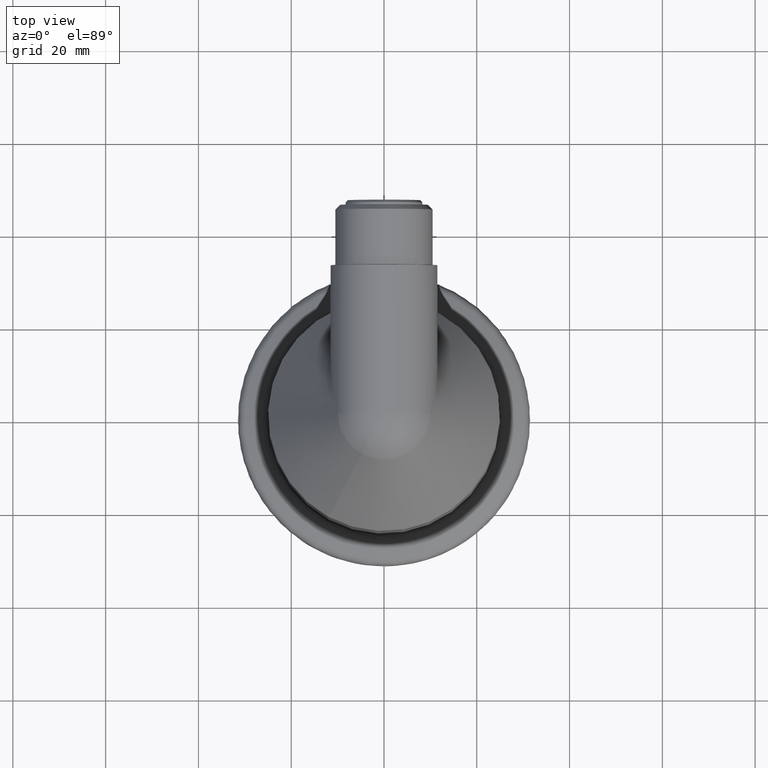
[diagram: clean part render]
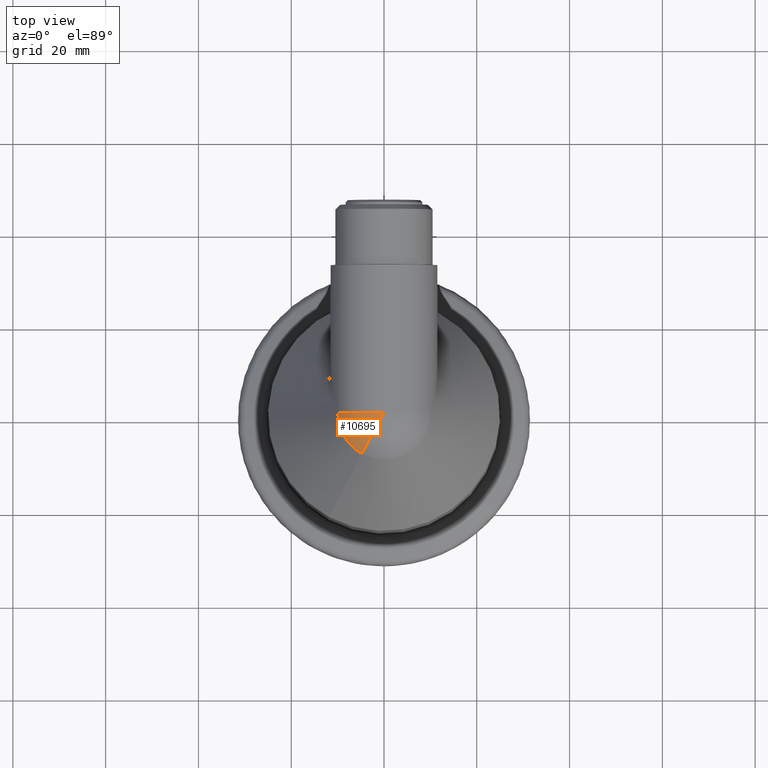
[diagram: same view with one face highlighted and labeled with its STEP entity id]
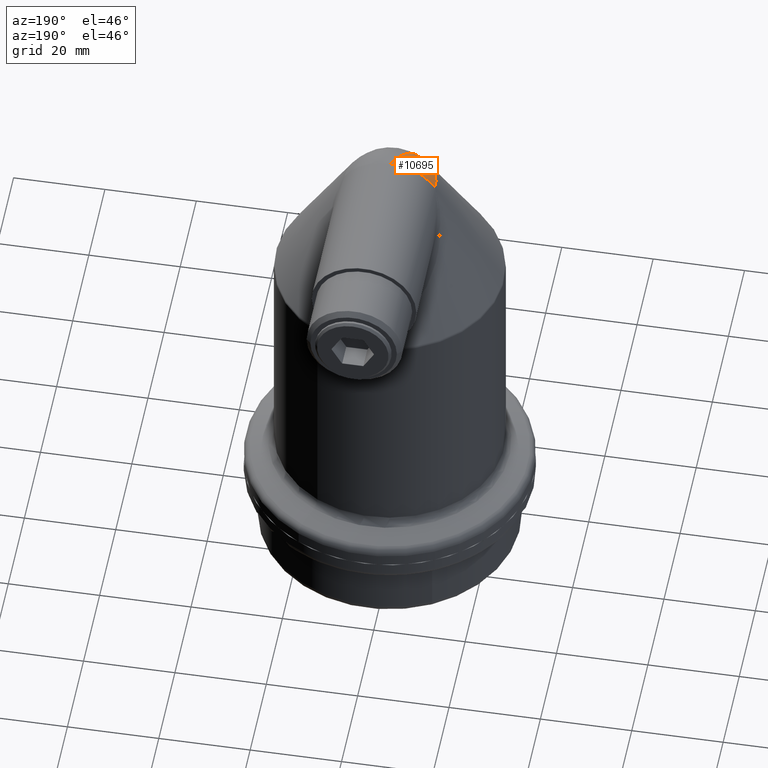
[diagram: same view with one face highlighted and labeled with its STEP entity id]
A machine part, top view. The second image highlights one B-rep face of the part: STEP entity #10695.
A second angle (auxiliary view) of the same face is appended — the face is thin or edge-on in the first view.
In plain terms, the highlighted spherical surface has radius 11.5 mm.
Its self-contained STEP definition (entity closure, byte-faithful):
#10669=AXIS2_PLACEMENT_3D('Sphere Axis2P3D',#10666,#10667,#10668) ;
#10673=AXIS2_PLACEMENT_3D('Circle Axis2P3D',#10671,#10672,$) ;
#10680=AXIS2_PLACEMENT_3D('Circle Axis2P3D',#10678,#10679,$) ;
#10687=AXIS2_PLACEMENT_3D('Circle Axis2P3D',#10685,#10686,$) ;
#10634=CARTESIAN_POINT('Vertex',(-9.95929214352,1.09912079438E-014,98.25)) ;
#10666=CARTESIAN_POINT('Axis2P3D Location',(0.,-1.13279828921E-014,92.5)) ;
#10671=CARTESIAN_POINT('Axis2P3D Location',(0.,-1.13279828921E-014,92.5)) ;
#10675=CARTESIAN_POINT('Vertex',(3.37597996987E-016,-1.04729642047E-014,104.)) ;
#10678=CARTESIAN_POINT('Axis2P3D Location',(0.,-1.12094580426E-014,98.25)) ;
#10682=CARTESIAN_POINT('Vertex',(-4.77473900002,-8.74010111393,98.25)) ;
#10685=CARTESIAN_POINT('Axis2P3D Location',(0.,-1.13279828921E-014,92.5)) ;
#10667=DIRECTION('Axis2P3D Direction',(0.,-2.06130173133E-017,-1.)) ;
#10668=DIRECTION('Axis2P3D XDirection',(0.479425538604,0.87758256189,0.)) ;
#10672=DIRECTION('Axis2P3D Direction',(3.67394039744E-016,-1.,2.06130173133E-017)) ;
#10679=DIRECTION('Axis2P3D Direction',(0.,-2.06130173133E-017,-1.)) ;
#10686=DIRECTION('Axis2P3D Direction',(0.87758256189,-0.479425538604,9.8824069277E-018)) ;
#10691=ORIENTED_EDGE('',*,*,#10677,.F.) ;
#10692=ORIENTED_EDGE('',*,*,#10684,.F.) ;
#10693=ORIENTED_EDGE('',*,*,#10689,.T.) ;
#10695=ADVANCED_FACE('Hauptk\X2\00F6\X0\rper',(#10694),#10670,.T.) ;
#10674=CIRCLE('generated circle',#10673,11.5) ;
#10681=CIRCLE('generated circle',#10680,9.95929214352) ;
#10688=CIRCLE('generated circle',#10687,11.5) ;
#10677=EDGE_CURVE('',#10635,#10676,#10674,.F.) ;
#10684=EDGE_CURVE('',#10683,#10635,#10681,.T.) ;
#10689=EDGE_CURVE('',#10683,#10676,#10688,.F.) ;
#10690=EDGE_LOOP('',(#10691,#10692,#10693)) ;
#10694=FACE_OUTER_BOUND('',#10690,.T.) ;
#10670=SPHERICAL_SURFACE('',#10669,11.5) ;
#10635=VERTEX_POINT('',#10634) ;
#10676=VERTEX_POINT('',#10675) ;
#10683=VERTEX_POINT('',#10682) ;